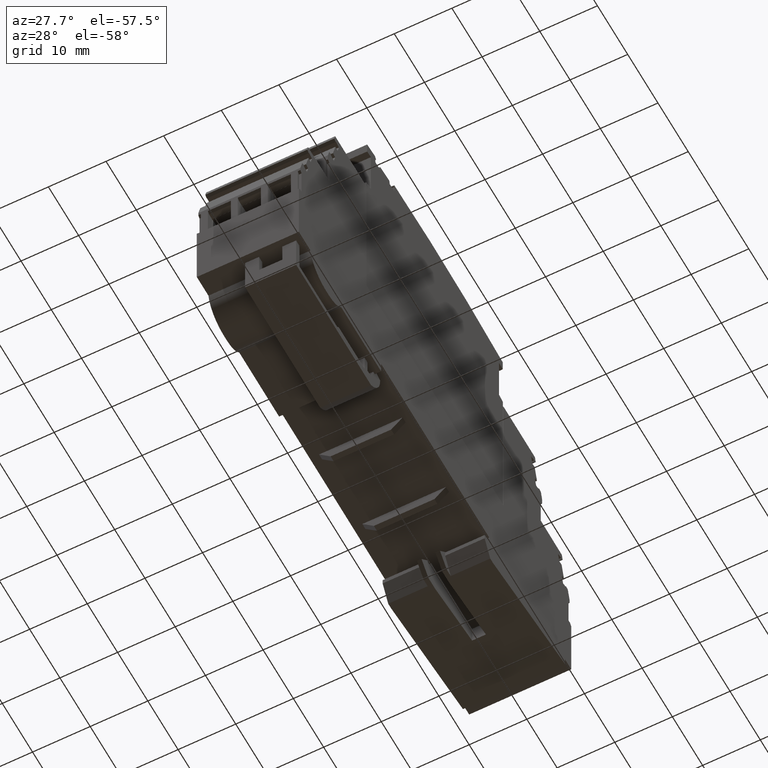
[diagram: clean part render]
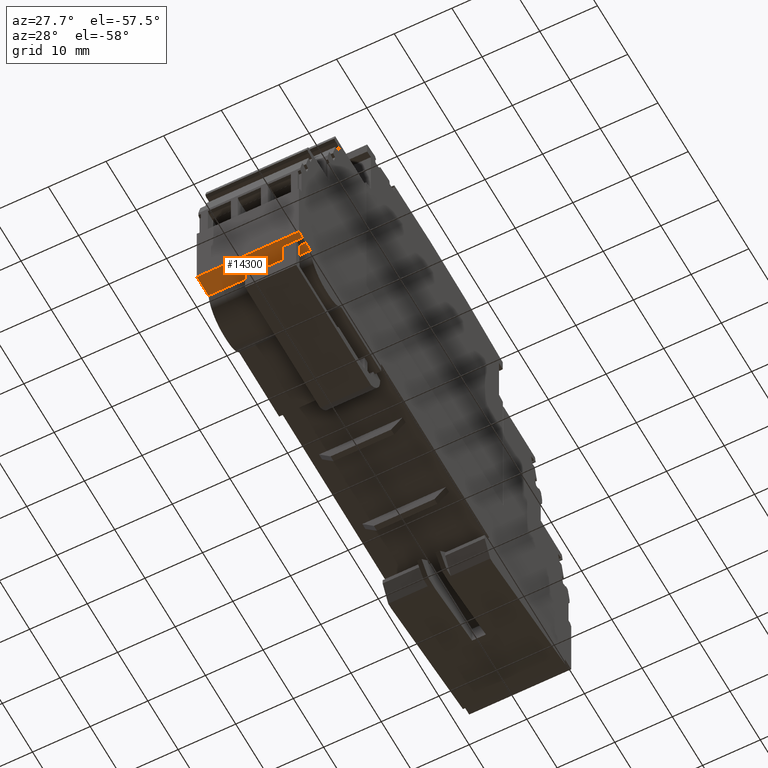
[diagram: same view with one face highlighted and labeled with its STEP entity id]
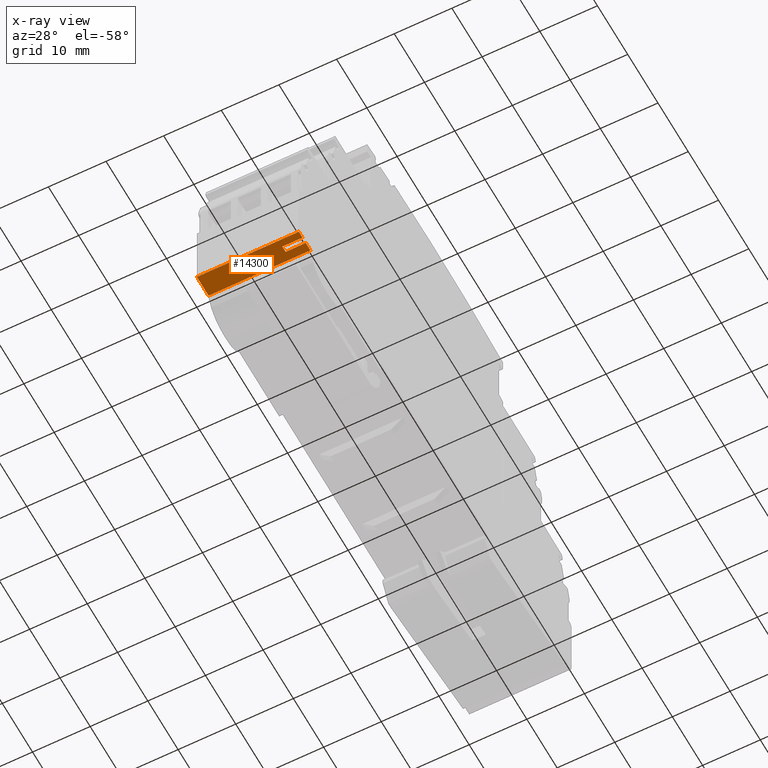
[diagram: x-ray of the same camera — body ghosted, the highlighted face saturated]
A machine part, auxiliary view. The second image highlights one B-rep face of the part: STEP entity #14300.
The next image is the same camera in x-ray: the body ghosted, the highlighted face saturated — about 0% of this face is hidden behind the body in this view.
In plain terms, the highlighted planar face has unit normal (-0, 0, 1).
Its self-contained STEP definition (entity closure, byte-faithful):
#6310=CARTESIAN_POINT('',(110.498921229891,15.056274052443,
-49.4595517602489));
#6320=VERTEX_POINT('',#6310);
#6350=CARTESIAN_POINT('',(129.782702574557,15.056274052443,
-49.4595517602489));
#6360=DIRECTION('',(-1.,-1.20996962449382E-16,-1.22464679914735E-16));
#6370=VECTOR('',#6360,1.);
#6380=LINE('',#6350,#6370);
#6390=CARTESIAN_POINT('',(112.04757800655,15.056274052443,
-49.4595517602489));
#6400=VERTEX_POINT('',#6390);
#6410=EDGE_CURVE('',#6400,#6320,#6380,.T.);
#6550=CARTESIAN_POINT('',(113.141351260642,15.056274052443,
-49.4595517602489));
#6560=VERTEX_POINT('',#6550);
#6590=CARTESIAN_POINT('',(129.782702574557,15.056274052443,
-49.4595517602489));
#6600=DIRECTION('',(-1.,-1.20996962449382E-16,-1.22464679914735E-16));
#6610=VECTOR('',#6600,1.);
#6620=LINE('',#6590,#6610);
#6630=CARTESIAN_POINT('',(114.341351239286,15.056274052443,
-49.4595517602489));
#6640=VERTEX_POINT('',#6630);
#6650=EDGE_CURVE('',#6640,#6560,#6620,.T.);
#11960=CARTESIAN_POINT('',(113.141351260642,15.056274052443,
-39.5095517602489));
#11970=VERTEX_POINT('',#11960);
#12020=CARTESIAN_POINT('',(113.141351260642,15.056274052443,
-83.0095517603414));
#12030=DIRECTION('',(0.,7.51478429024816E-19,-1.));
#12040=VECTOR('',#12030,1.);
#12050=LINE('',#12020,#12040);
#12060=CARTESIAN_POINT('',(113.141351260642,15.056274052443,
-41.9095517602489));
#12070=VERTEX_POINT('',#12060);
#12080=EDGE_CURVE('',#11970,#12070,#12050,.T.);
#12300=CARTESIAN_POINT('',(113.141351260642,15.056274052443,
-45.9595517602489));
#12310=VERTEX_POINT('',#12300);
#12340=EDGE_CURVE('',#12310,#6560,#12050,.T.);
#12740=CARTESIAN_POINT('',(113.141351260642,15.0562740524429,
-41.9095517602489));
#12750=DIRECTION('',(-1.,-2.41993924898765E-16,0.));
#12760=VECTOR('',#12750,1.);
#12770=LINE('',#12740,#12760);
#12780=CARTESIAN_POINT('',(112.04757800655,15.056274052443,
-41.9095517602489));
#12790=VERTEX_POINT('',#12780);
#12800=EDGE_CURVE('',#12070,#12790,#12770,.T.);
#13480=CARTESIAN_POINT('',(112.04757800655,15.0562740524429,
-45.9595517602489));
#13490=VERTEX_POINT('',#13480);
#13520=CARTESIAN_POINT('',(113.141351260642,15.0562740524429,
-45.9595517602489));
#13530=DIRECTION('',(-1.,-2.41993924898765E-16,0.));
#13540=VECTOR('',#13530,1.);
#13550=LINE('',#13520,#13540);
#13560=EDGE_CURVE('',#12310,#13490,#13550,.T.);
#13690=CARTESIAN_POINT('',(114.341351239286,15.056274052443,
-31.7595517602489));
#13700=DIRECTION('',(-1.20996962449382E-16,1.,7.51478429024837E-19));
#13710=DIRECTION('',(1.22455682824757E-16,7.51478429024852E-19,-1.));
#13720=AXIS2_PLACEMENT_3D('',#13690,#13700,#13710);
#13730=PLANE('',#13720);
#13740=ORIENTED_EDGE('',*,*,#12800,.T.);
#13750=ORIENTED_EDGE('',*,*,#12080,.T.);
#13760=CARTESIAN_POINT('',(-5.32740216385719E-8,15.056274052443,
-39.5095517602489));
#13770=DIRECTION('',(1.,0.,1.22455682824757E-16));
#13780=VECTOR('',#13770,1.);
#13790=LINE('',#13760,#13780);
#13800=CARTESIAN_POINT('',(112.04757800655,15.056274052443,
-39.5095517602489));
#13810=VERTEX_POINT('',#13800);
#13820=EDGE_CURVE('',#13810,#11970,#13790,.T.);
#13830=ORIENTED_EDGE('',*,*,#13820,.T.);
#13840=CARTESIAN_POINT('',(112.04757800655,15.056274052443,
-83.0095517603414));
#13850=DIRECTION('',(-1.22467303079958E-16,-7.51478429024852E-19,1.));
#13860=VECTOR('',#13850,1.);
#13870=LINE('',#13840,#13860);
#13880=EDGE_CURVE('',#12790,#13810,#13870,.T.);
#13890=ORIENTED_EDGE('',*,*,#13880,.T.);
#13900=EDGE_LOOP('',(#13890,#13830,#13750,#13740));
#13910=FACE_BOUND('',#13900,.T.);
#13920=CARTESIAN_POINT('',(112.04757800653,15.056274052443,
-48.3595517602489));
#13930=VERTEX_POINT('',#13920);
#13940=EDGE_CURVE('',#13930,#13490,#13870,.T.);
#13950=ORIENTED_EDGE('',*,*,#13940,.T.);
#13960=CARTESIAN_POINT('',(112.04757800653,15.056274052443,
-83.0095517603414));
#13970=DIRECTION('',(9.28171575909159E-17,-7.51478429024825E-19,1.));
#13980=VECTOR('',#13970,1.);
#13990=LINE('',#13960,#13980);
#14000=EDGE_CURVE('',#6400,#13930,#13990,.T.);
#14010=ORIENTED_EDGE('',*,*,#14000,.T.);
#14020=ORIENTED_EDGE('',*,*,#6410,.F.);
#14030=CARTESIAN_POINT('',(110.498921229891,15.056274052443,
-31.7595517602489));
#14040=DIRECTION('',(1.22455682824757E-16,-2.60974393670053E-32,-1.));
#14050=VECTOR('',#14040,1.);
#14060=LINE('',#14030,#14050);
#14070=CARTESIAN_POINT('',(110.498921229891,15.056274052443,
-31.7595517602489));
#14080=VERTEX_POINT('',#14070);
#14090=EDGE_CURVE('',#14080,#6320,#14060,.T.);
#14100=ORIENTED_EDGE('',*,*,#14090,.T.);
#14110=CARTESIAN_POINT('',(101.563282574557,15.056274052443,
-31.7595517602489));
#14120=DIRECTION('',(1.,1.20996962449382E-16,1.22455682824757E-16));
#14130=VECTOR('',#14120,1.);
#14140=LINE('',#14110,#14130);
#14150=CARTESIAN_POINT('',(114.341351239286,15.056274052443,
-31.7595517602489));
#14160=VERTEX_POINT('',#14150);
#14170=EDGE_CURVE('',#14080,#14160,#14140,.T.);
#14180=ORIENTED_EDGE('',*,*,#14170,.F.);
#14190=CARTESIAN_POINT('',(114.341351239286,15.056274052443,
-83.0095517603414));
#14200=DIRECTION('',(0.,7.51478429024816E-19,-1.));
#14210=VECTOR('',#14200,1.);
#14220=LINE('',#14190,#14210);
#14230=EDGE_CURVE('',#14160,#6640,#14220,.T.);
#14240=ORIENTED_EDGE('',*,*,#14230,.F.);
#14250=ORIENTED_EDGE('',*,*,#6650,.F.);
#14260=ORIENTED_EDGE('',*,*,#12340,.T.);
#14270=ORIENTED_EDGE('',*,*,#13560,.F.);
#14280=EDGE_LOOP('',(#14270,#14260,#14250,#14240,#14180,#14100,#14020,
#14010,#13950));
#14290=FACE_OUTER_BOUND('',#14280,.T.);
#14300=ADVANCED_FACE('',(#13910,#14290),#13730,.F.);